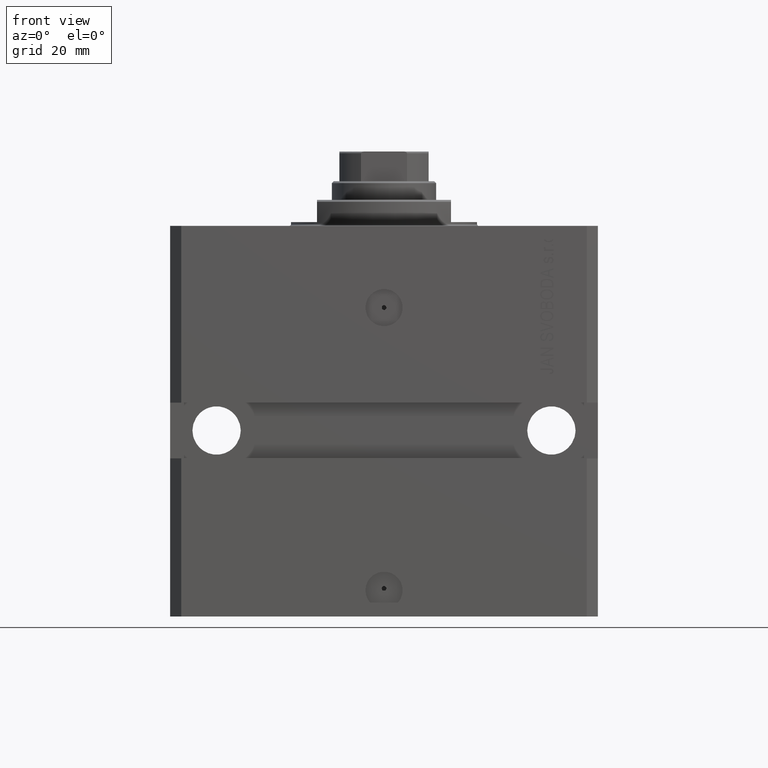
[diagram: clean part render]
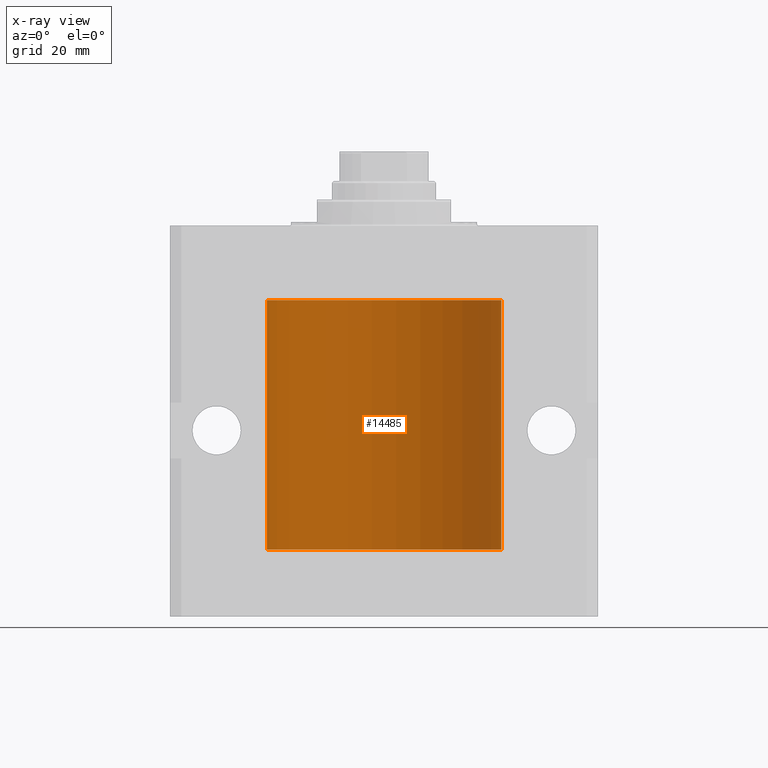
[diagram: x-ray — body ghosted, one internal face saturated and labeled with its STEP entity id]
A machine part, front view, then the same camera in x-ray: the body is ghosted and one INTERNAL B-rep face — a face not visible from any outside direction — is saturated and labeled: STEP entity #14485.
In plain terms, the highlighted cylindrical surface (partial cylindrical patch) has radius 31.5 mm, axis along (0, 0, 1).
Its self-contained STEP definition (entity closure, byte-faithful):
#90 = CARTESIAN_POINT ( 'NONE',  ( -31.50000000000000000, 0.08259258789479792529, -28.37500000000000355 ) ) ;
#4508 = CARTESIAN_POINT ( 'NONE',  ( -31.49379784581975983, 0.6250577973157599443, -29.16284184848848327 ) ) ;
#6458 = DIRECTION ( 'NONE',  ( -0.000000000000000000, -0.000000000000000000, 1.000000000000000000 ) ) ;
#6793 = ORIENTED_EDGE ( 'NONE', *, *, #38706, .T. ) ;
#7226 = CARTESIAN_POINT ( 'NONE',  ( -31.50000000000000000, 6.762885151983182724E-15, -28.37500000000000355 ) ) ;
#7401 = EDGE_CURVE ( 'NONE', #38009, #15739, #22955, .T. ) ;
#7814 = ORIENTED_EDGE ( 'NONE', *, *, #20162, .T. ) ;
#8009 = AXIS2_PLACEMENT_3D ( 'NONE', #9578, #21821, #36808 ) ;
#9578 = CARTESIAN_POINT ( 'NONE',  ( 0.000000000000000000, 0.000000000000000000, -87.09999999999999432 ) ) ;
#9649 = CARTESIAN_POINT ( 'NONE',  ( -31.50000000000006395, 3.480981129463732167E-13, -84.62500000000324007 ) ) ;
#10524 = CARTESIAN_POINT ( 'NONE',  ( -31.49379784581975272, 0.6250577973157672718, -84.16284184848845484 ) ) ;
#11393 = CARTESIAN_POINT ( 'NONE',  ( -31.49528028230854559, 0.5573323339569596913, -28.67349008819320488 ) ) ;
#12359 = CARTESIAN_POINT ( 'NONE',  ( -31.50000000000000711, 0.1631661150515227865, -29.62499999999986500 ) ) ;
#13080 = AXIS2_PLACEMENT_3D ( 'NONE', #35435, #31272, #39377 ) ;
#13981 = VECTOR ( 'NONE', #38741, 1000.000000000000000 ) ;
#14041 = VERTEX_POINT ( 'NONE', #42592 ) ;
#14485 = ADVANCED_FACE ( 'NONE', ( #31335 ), #23961, .F. ) ;
#15377 = CARTESIAN_POINT ( 'NONE',  ( -31.50000000000000000, 6.762885151983182724E-15, -28.37500000000000355 ) ) ;
#15739 = VERTEX_POINT ( 'NONE', #41962 ) ;
#16213 = CIRCLE ( 'NONE', #13080, 31.50000000000000000 ) ;
#16353 = CARTESIAN_POINT ( 'NONE',  ( -31.50000000000000000, 3.857637417314162689E-15, -87.09999999999999432 ) ) ;
#16889 = AXIS2_PLACEMENT_3D ( 'NONE', #18030, #6458, #36958 ) ;
#17671 = CARTESIAN_POINT ( 'NONE',  ( -31.50000000000006395, 3.480981129463732167E-13, -84.62500000000324007 ) ) ;
#17690 = CARTESIAN_POINT ( 'NONE',  ( 31.50000000000000000, 0.000000000000000000, -20.00000000000000355 ) ) ;
#18030 = CARTESIAN_POINT ( 'NONE',  ( 0.000000000000000000, 0.000000000000000000, -87.09999999999999432 ) ) ;
#18948 = CARTESIAN_POINT ( 'NONE',  ( -31.50000000000000000, 7.975607743522037396E-16, -83.37500000000000000 ) ) ;
#19804 = ORIENTED_EDGE ( 'NONE', *, *, #21727, .T. ) ;
#20162 = EDGE_CURVE ( 'NONE', #38009, #35792, #32565, .T. ) ;
#20269 = DIRECTION ( 'NONE',  ( -0.000000000000000000, -0.000000000000000000, 1.000000000000000000 ) ) ;
#20943 = VECTOR ( 'NONE', #34880, 1000.000000000000000 ) ;
#21148 = EDGE_CURVE ( 'NONE', #29245, #14041, #23356, .T. ) ;
#21382 = CARTESIAN_POINT ( 'NONE',  ( -31.49380014137585704, 0.6249421240571523262, -83.83671479190289233 ) ) ;
#21727 = EDGE_CURVE ( 'NONE', #35792, #35449, #16213, .T. ) ;
#21766 = B_SPLINE_CURVE_WITH_KNOTS ( 'NONE', 3,
 ( #7226, #90, #45119, #22254, #37246, #11393, #26425, #4508, #31072, #38211, #12359, #34753 ),
 .UNSPECIFIED., .F., .F.,
 ( 4, 2, 2, 2, 2, 4 ),
 ( 5.322949309211407119E-19, 0.0002442604562134704257, 0.0004885209124269403094, 0.0009770418248538795345, 0.001465562737280818977, 0.001954083649707758635 ),
 .UNSPECIFIED. ) ;
#21821 = DIRECTION ( 'NONE',  ( 0.000000000000000000, 0.000000000000000000, 1.000000000000000000 ) ) ;
#22089 = B_SPLINE_CURVE_WITH_KNOTS ( 'NONE', 3,
 ( #28994, #40059, #32196, #44246, #24831, #25309, #21382, #10524, #36359, #40554, #36851, #17671 ),
 .UNSPECIFIED., .F., .F.,
 ( 4, 2, 2, 2, 2, 4 ),
 ( 3.075703443732137786E-18, 0.0002442604562134845204, 0.0004885209124269658965, 0.0009770418248538992670, 0.001465562737280832637, 0.001954083649707766008 ),
 .UNSPECIFIED. ) ;
#22254 = CARTESIAN_POINT ( 'NONE',  ( -31.49851563474691929, 0.3150284575672404608, -28.45401791159624949 ) ) ;
#22955 = CIRCLE ( 'NONE', #8009, 31.50000000000000000 ) ;
#23356 = LINE ( 'NONE', #27516, #20943 ) ;
#23754 = LINE ( 'NONE', #16353, #13981 ) ;
#23961 = CYLINDRICAL_SURFACE ( 'NONE', #16889, 31.50000000000000000 ) ;
#24831 = CARTESIAN_POINT ( 'NONE',  ( -31.49770767031179730, 0.3843648832734379295, -83.50046081259654329 ) ) ;
#25309 = CARTESIAN_POINT ( 'NONE',  ( -31.49528028230855270, 0.5573323339569611345, -83.67349008819321909 ) ) ;
#26425 = CARTESIAN_POINT ( 'NONE',  ( -31.49380014137586414, 0.6249421240571522151, -28.83671479190292075 ) ) ;
#26702 = ORIENTED_EDGE ( 'NONE', *, *, #21148, .F. ) ;
#26727 = EDGE_CURVE ( 'NONE', #15739, #32848, #39432, .T. ) ;
#27187 = VECTOR ( 'NONE', #39945, 1000.000000000000000 ) ;
#27516 = CARTESIAN_POINT ( 'NONE',  ( -31.50000000000000000, 3.857637417314162689E-15, -87.09999999999999432 ) ) ;
#28994 = CARTESIAN_POINT ( 'NONE',  ( -31.50000000000000000, 7.975607743522037396E-16, -83.37500000000000000 ) ) ;
#29245 = VERTEX_POINT ( 'NONE', #18948 ) ;
#29699 = ORIENTED_EDGE ( 'NONE', *, *, #7401, .F. ) ;
#30448 = EDGE_LOOP ( 'NONE', ( #42990, #29699, #7814, #19804, #38246, #31814, #26702, #6793 ) ) ;
#31005 = CARTESIAN_POINT ( 'NONE',  ( -31.50000000000000000, 3.857637417314162689E-15, -20.00000000000000355 ) ) ;
#31072 = CARTESIAN_POINT ( 'NONE',  ( -31.49526081842315151, 0.5587119163470772865, -29.32511513093050937 ) ) ;
#31272 = DIRECTION ( 'NONE',  ( 0.000000000000000000, 0.000000000000000000, 1.000000000000000000 ) ) ;
#31335 = FACE_OUTER_BOUND ( 'NONE', #30448, .T. ) ;
#31814 = ORIENTED_EDGE ( 'NONE', *, *, #32786, .T. ) ;
#32105 = EDGE_CURVE ( 'NONE', #39149, #35449, #23754, .T. ) ;
#32196 = CARTESIAN_POINT ( 'NONE',  ( -31.49966591610109390, 0.1636376958180636443, -83.39126189995840832 ) ) ;
#32565 = LINE ( 'NONE', #43888, #27187 ) ;
#32786 = EDGE_CURVE ( 'NONE', #39149, #14041, #21766, .T. ) ;
#32848 = VERTEX_POINT ( 'NONE', #9649 ) ;
#34753 = CARTESIAN_POINT ( 'NONE',  ( -31.50000000000006395, 3.480980906124966778E-13, -29.62500000000323297 ) ) ;
#34880 = DIRECTION ( 'NONE',  ( -0.000000000000000000, -0.000000000000000000, 1.000000000000000000 ) ) ;
#35435 = CARTESIAN_POINT ( 'NONE',  ( 0.000000000000000000, 0.000000000000000000, -20.00000000000000355 ) ) ;
#35449 = VERTEX_POINT ( 'NONE', #31005 ) ;
#35731 = CARTESIAN_POINT ( 'NONE',  ( -31.50000000000000000, 3.857637417314162689E-15, -87.09999999999999432 ) ) ;
#35788 = VECTOR ( 'NONE', #20269, 1000.000000000000000 ) ;
#35792 = VERTEX_POINT ( 'NONE', #17690 ) ;
#36359 = CARTESIAN_POINT ( 'NONE',  ( -31.49526081842315151, 0.5587119163470756211, -84.32511513093052713 ) ) ;
#36808 = DIRECTION ( 'NONE',  ( 1.000000000000000000, 0.000000000000000000, 0.000000000000000000 ) ) ;
#36851 = CARTESIAN_POINT ( 'NONE',  ( -31.49999999999998579, 0.1631661150515253123, -84.62499999999982947 ) ) ;
#36958 = DIRECTION ( 'NONE',  ( 1.000000000000000000, 0.000000000000000000, 0.000000000000000000 ) ) ;
#37246 = CARTESIAN_POINT ( 'NONE',  ( -31.49770767031179730, 0.3843648832734374854, -28.50046081259655395 ) ) ;
#38009 = VERTEX_POINT ( 'NONE', #38056 ) ;
#38056 = CARTESIAN_POINT ( 'NONE',  ( 31.50000000000000000, 0.000000000000000000, -87.09999999999999432 ) ) ;
#38211 = CARTESIAN_POINT ( 'NONE',  ( -31.49853548231893541, 0.3253851488062238784, -29.55855470525682094 ) ) ;
#38246 = ORIENTED_EDGE ( 'NONE', *, *, #32105, .F. ) ;
#38706 = EDGE_CURVE ( 'NONE', #29245, #32848, #22089, .T. ) ;
#38741 = DIRECTION ( 'NONE',  ( -0.000000000000000000, -0.000000000000000000, 1.000000000000000000 ) ) ;
#39149 = VERTEX_POINT ( 'NONE', #15377 ) ;
#39377 = DIRECTION ( 'NONE',  ( 1.000000000000000000, 0.000000000000000000, 0.000000000000000000 ) ) ;
#39432 = LINE ( 'NONE', #35731, #35788 ) ;
#39945 = DIRECTION ( 'NONE',  ( -0.000000000000000000, -0.000000000000000000, 1.000000000000000000 ) ) ;
#40059 = CARTESIAN_POINT ( 'NONE',  ( -31.49999999999998579, 0.08259258789479478891, -83.37499999999998579 ) ) ;
#40554 = CARTESIAN_POINT ( 'NONE',  ( -31.49853548231893541, 0.3253851488062164399, -84.55855470525685291 ) ) ;
#41962 = CARTESIAN_POINT ( 'NONE',  ( -31.50000000000000000, 3.857637417314162689E-15, -87.09999999999999432 ) ) ;
#42592 = CARTESIAN_POINT ( 'NONE',  ( -31.50000000000006395, 3.480980906124966778E-13, -29.62500000000323297 ) ) ;
#42990 = ORIENTED_EDGE ( 'NONE', *, *, #26727, .F. ) ;
#43888 = CARTESIAN_POINT ( 'NONE',  ( 31.50000000000000000, 0.000000000000000000, -87.09999999999999432 ) ) ;
#44246 = CARTESIAN_POINT ( 'NONE',  ( -31.49851563474691218, 0.3150284575672411824, -83.45401791159622462 ) ) ;
#45119 = CARTESIAN_POINT ( 'NONE',  ( -31.49966591610108679, 0.1636376958180631447, -28.39126189995838700 ) ) ;